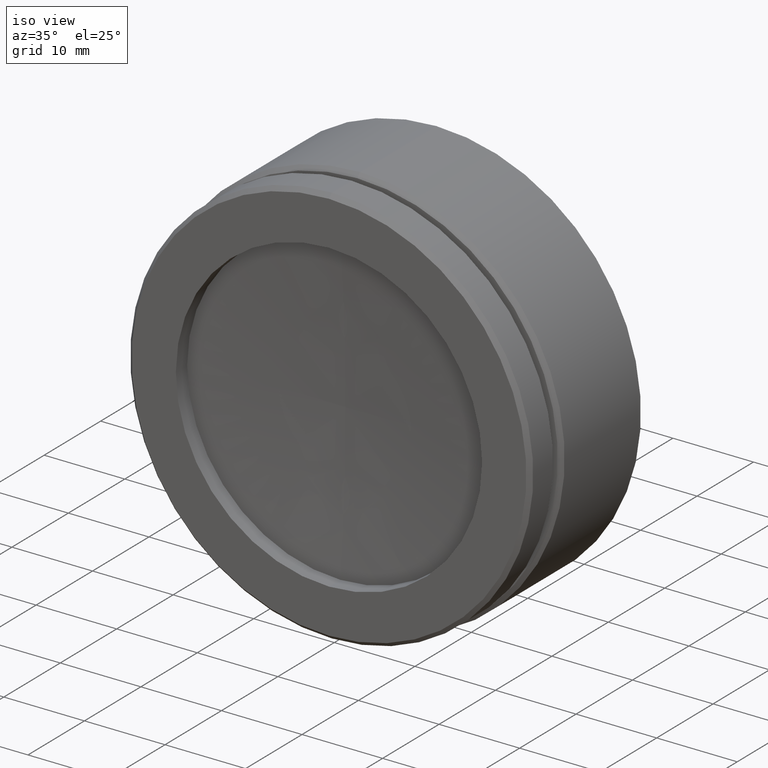
[diagram: clean part render]
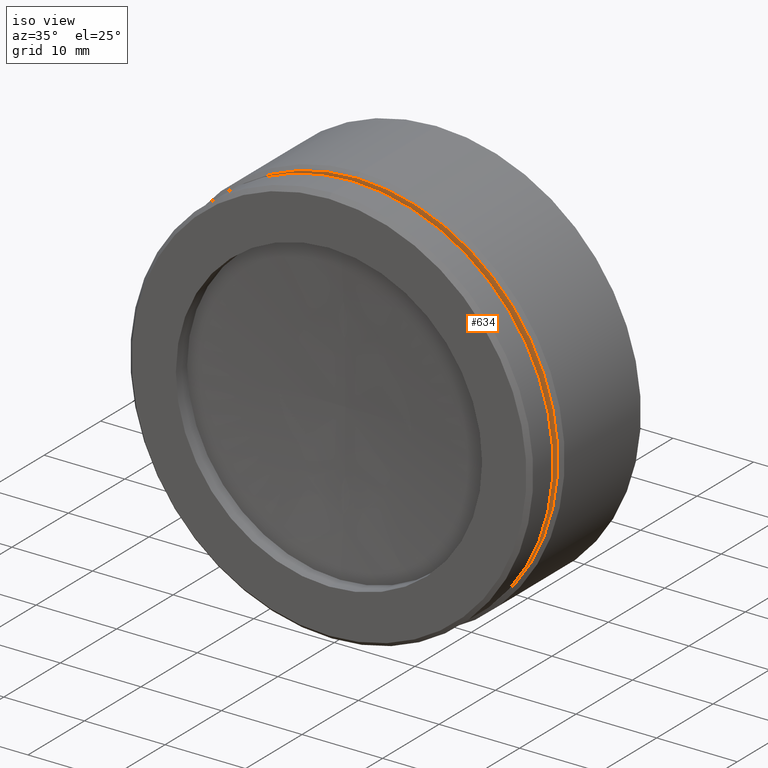
[diagram: same view with one face highlighted and labeled with its STEP entity id]
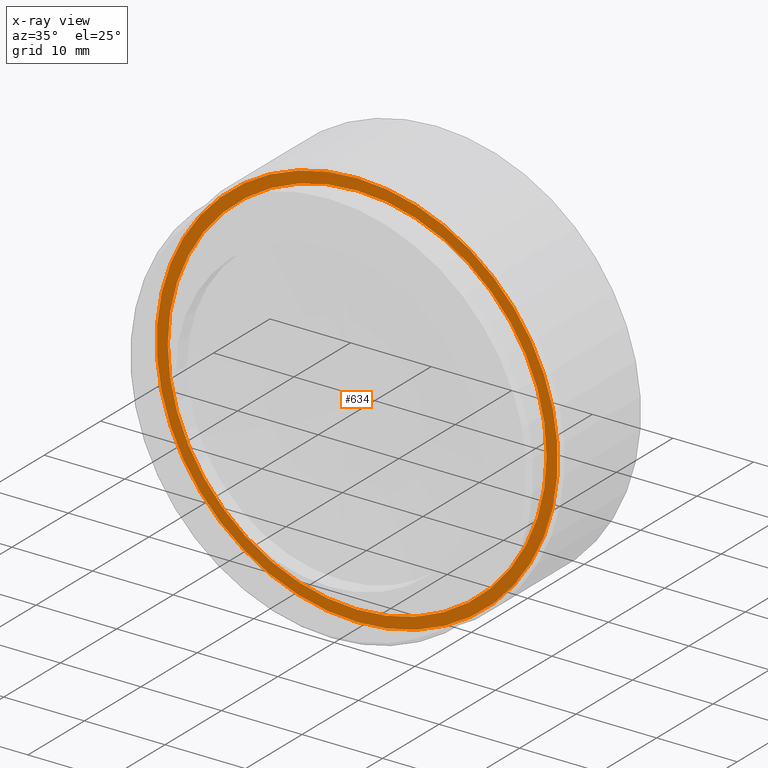
[diagram: x-ray of the same camera — body ghosted, the highlighted face saturated]
A machine part, iso view. The second image highlights one B-rep face of the part: STEP entity #634.
The next image is the same camera in x-ray: the body ghosted, the highlighted face saturated — about 0% of this face is hidden behind the body in this view.
In plain terms, the highlighted planar face has unit normal (0, -1, 0).
Its self-contained STEP definition (entity closure, byte-faithful):
#25 = FACE_OUTER_BOUND ( 'NONE', #237, .T. ) ;
#44 = CARTESIAN_POINT ( 'NONE',  ( 14.59478235880055941, -17.49899378910162184, 26.65036394347454873 ) ) ;
#81 = CIRCLE ( 'NONE', #1426, 23.50000000000000000 ) ;
#102 = CARTESIAN_POINT ( 'NONE',  ( -8.905217641199440592, -17.49899378910162184, 26.65036394347454873 ) ) ;
#110 = CARTESIAN_POINT ( 'NONE',  ( -8.905217641199440592, -17.49899378910162184, 26.65036394347454873 ) ) ;
#126 = AXIS2_PLACEMENT_3D ( 'NONE', #1451, #931, #948 ) ;
#140 = DIRECTION ( 'NONE',  ( 0.000000000000000000, -1.000000000000000000, 0.000000000000000000 ) ) ;
#162 = CARTESIAN_POINT ( 'NONE',  ( -8.905217641199437040, -17.49899378910162184, 1.750363943474549711 ) ) ;
#185 = EDGE_CURVE ( 'NONE', #836, #1110, #81, .T. ) ;
#219 = CARTESIAN_POINT ( 'NONE',  ( -8.905217641199437040, -17.49899378910162184, 50.15036394347455229 ) ) ;
#237 = EDGE_LOOP ( 'NONE', ( #1523, #342 ) ) ;
#296 = PLANE ( 'NONE',  #545 ) ;
#342 = ORIENTED_EDGE ( 'NONE', *, *, #370, .T. ) ;
#350 = CIRCLE ( 'NONE', #667, 23.50000000000000000 ) ;
#370 = EDGE_CURVE ( 'NONE', #580, #479, #1428, .T. ) ;
#383 = DIRECTION ( 'NONE',  ( 0.000000000000000000, 0.000000000000000000, -1.000000000000000000 ) ) ;
#479 = VERTEX_POINT ( 'NONE', #1621 ) ;
#483 = DIRECTION ( 'NONE',  ( 0.000000000000000000, 0.000000000000000000, -1.000000000000000000 ) ) ;
#520 = ORIENTED_EDGE ( 'NONE', *, *, #893, .F. ) ;
#545 = AXIS2_PLACEMENT_3D ( 'NONE', #44, #547, #676 ) ;
#547 = DIRECTION ( 'NONE',  ( 0.000000000000000000, -1.000000000000000000, 0.000000000000000000 ) ) ;
#580 = VERTEX_POINT ( 'NONE', #162 ) ;
#634 = ADVANCED_FACE ( 'NONE', ( #25, #817 ), #296, .T. ) ;
#651 = DIRECTION ( 'NONE',  ( 0.000000000000000000, -1.000000000000000000, 0.000000000000000000 ) ) ;
#667 = AXIS2_PLACEMENT_3D ( 'NONE', #110, #651, #383 ) ;
#673 = AXIS2_PLACEMENT_3D ( 'NONE', #102, #881, #483 ) ;
#676 = DIRECTION ( 'NONE',  ( 0.000000000000000000, 0.000000000000000000, -1.000000000000000000 ) ) ;
#723 = CIRCLE ( 'NONE', #126, 24.89999999999999858 ) ;
#739 = ORIENTED_EDGE ( 'NONE', *, *, #185, .F. ) ;
#785 = EDGE_LOOP ( 'NONE', ( #739, #520 ) ) ;
#817 = FACE_BOUND ( 'NONE', #785, .T. ) ;
#836 = VERTEX_POINT ( 'NONE', #1441 ) ;
#881 = DIRECTION ( 'NONE',  ( 0.000000000000000000, -1.000000000000000000, 0.000000000000000000 ) ) ;
#893 = EDGE_CURVE ( 'NONE', #1110, #836, #350, .T. ) ;
#931 = DIRECTION ( 'NONE',  ( 0.000000000000000000, -1.000000000000000000, 0.000000000000000000 ) ) ;
#948 = DIRECTION ( 'NONE',  ( 0.000000000000000000, 0.000000000000000000, -1.000000000000000000 ) ) ;
#1110 = VERTEX_POINT ( 'NONE', #219 ) ;
#1266 = EDGE_CURVE ( 'NONE', #479, #580, #723, .T. ) ;
#1334 = DIRECTION ( 'NONE',  ( 0.000000000000000000, 0.000000000000000000, -1.000000000000000000 ) ) ;
#1342 = CARTESIAN_POINT ( 'NONE',  ( -8.905217641199440592, -17.49899378910162184, 26.65036394347454873 ) ) ;
#1426 = AXIS2_PLACEMENT_3D ( 'NONE', #1342, #140, #1334 ) ;
#1428 = CIRCLE ( 'NONE', #673, 24.89999999999999858 ) ;
#1441 = CARTESIAN_POINT ( 'NONE',  ( -8.905217641199440592, -17.49899378910162184, 3.150363943474548289 ) ) ;
#1451 = CARTESIAN_POINT ( 'NONE',  ( -8.905217641199440592, -17.49899378910162184, 26.65036394347454873 ) ) ;
#1523 = ORIENTED_EDGE ( 'NONE', *, *, #1266, .T. ) ;
#1621 = CARTESIAN_POINT ( 'NONE',  ( -8.905217641199440592, -17.49899378910162184, 51.55036394347455087 ) ) ;